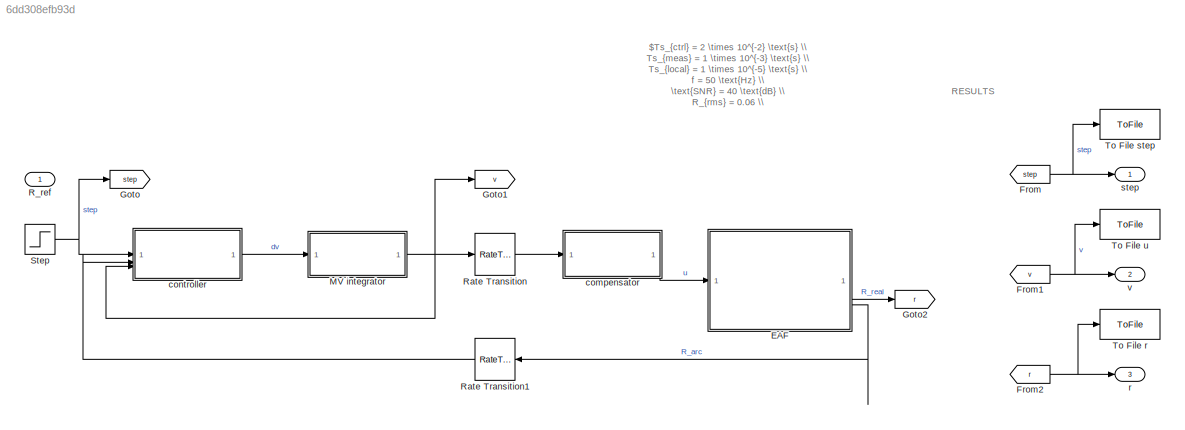
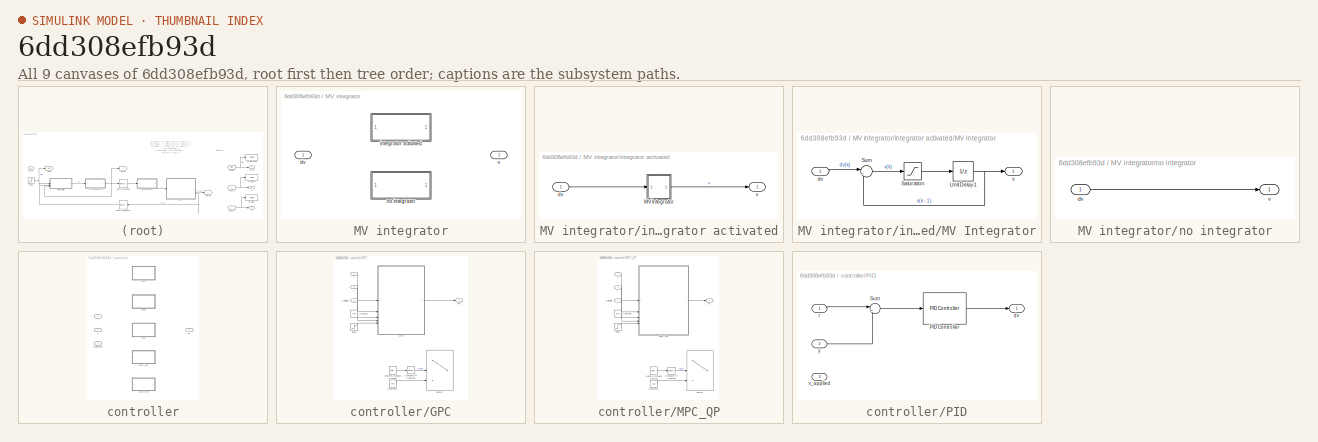
[diagram: thumbnail index - all 9 canvases of the model, root first then tree order]
MODEL slx_6dd308efb93d
KIND model
CONFIG AbsTol = auto
CONFIG EnableMultiTasking = off
CONFIG FixedStep = Ts_local
CONFIG MaxStep = auto
CONFIG MinStep = auto
CONFIG RelTol = 1e-4
CONFIG SampleTimeConstraint = Unconstrained
CONFIG SolverName = ode14x
CONFIG StartTime = 0.0
CONFIG StopTime = 40
WORKSPACE source: mxarray member
WORKSPACE CtrlChoice: string (value not decoded)
WORKSPACE Kd = [0.01225 0.02 0.01225]
WORKSPACE Ki = 20
WORKSPACE Kp = 20
BLOCK [ModelReference] EAF
  ModelNameDialog = EAF.slx
  ModelReferenceVersion = 1.100
  PortSchema = {"entries":[{"content":{"sides":[{"content":{"connectorIds":["In1","In2"]},"type":"ConnectorPlacement.EquallySpacedRectSide","uuid":"d86d1ee9-bc46-42a8-9524-fd49ad5347e3"},{"content":{"connectorIds":["Out1","Out3","Out2","Out4","Out5"],"side":"RIGHT"},"type":"ConnectorPlacement.EquallySpacedRectSide","uuid":"5e39bbbf-7cf1-43cf-875a-d495ff7677ac"},{"content":{"side":"TOP"},"type":"ConnectorPlacemen...<+256ch>
BLOCK [From] From
  GotoTag = step
BLOCK [From] From1
  GotoTag = v
BLOCK [From] From2
  GotoTag = r
BLOCK [Goto] Goto
  GotoTag = step
BLOCK [Goto] Goto1
  GotoTag = v
BLOCK [Goto] Goto2
  GotoTag = r
BLOCK [SubSystem] MV integrator
  Variant = on
BLOCK [Inport] MV integrator/dv
BLOCK [SubSystem] MV integrator/integrator activated
  VariantControl = (default)
BLOCK [SubSystem] MV integrator/integrator activated/MV Integrator
BLOCK [Saturate] MV integrator/integrator activated/MV Integrator/Saturation
  LowerLimit = v_lb
  UpperLimit = v_ub
BLOCK [Sum] MV integrator/integrator activated/MV Integrator/Sum
  Inputs = |++
BLOCK [UnitDelay] MV integrator/integrator activated/MV Integrator/Unit Delay1
  HasFrameUpgradeWarning = on
  SampleTime = -1
BLOCK [Inport] MV integrator/integrator activated/MV Integrator/dv
BLOCK [Outport] MV integrator/integrator activated/MV Integrator/v
BLOCK [Inport] MV integrator/integrator activated/dv
BLOCK [Outport] MV integrator/integrator activated/v
BLOCK [SubSystem] MV integrator/no integrator
  VariantControl = CtrlChoice == "PID"
BLOCK [Inport] MV integrator/no integrator/dv
BLOCK [Outport] MV integrator/no integrator/v
BLOCK [Outport] MV integrator/v
BLOCK [Inport] R_ref
  PortDimensions = 3
BLOCK [RateTransition] Rate Transition
  OutPortSampleTime = Ts_local
BLOCK [RateTransition] Rate Transition1
  NameLocation = top
  OutPortSampleTime = Ts_ctrl
BLOCK [Step] Step
  After = [0.045 0.065 0.045]
  Before = [0.055 0.055 0.055]
  SampleTime = Ts_ctrl
  Time = [20 10 30]
BLOCK [ToFile] To File r
  Commented = on
  Filename = r.mat
  MatrixName = r
  SaveFormat = Timeseries
BLOCK [ToFile] To File step
  Commented = on
  Filename = step.mat
  MatrixName = step
  SaveFormat = Timeseries
BLOCK [ToFile] To File u
  Commented = on
  Filename = u.mat
  MatrixName = u
  SaveFormat = Timeseries
BLOCK [ModelReference] compensator
  ModelNameDialog = compensator.slx
  ModelReferenceVersion = 1.24
BLOCK [SubSystem] controller
  Variant = on
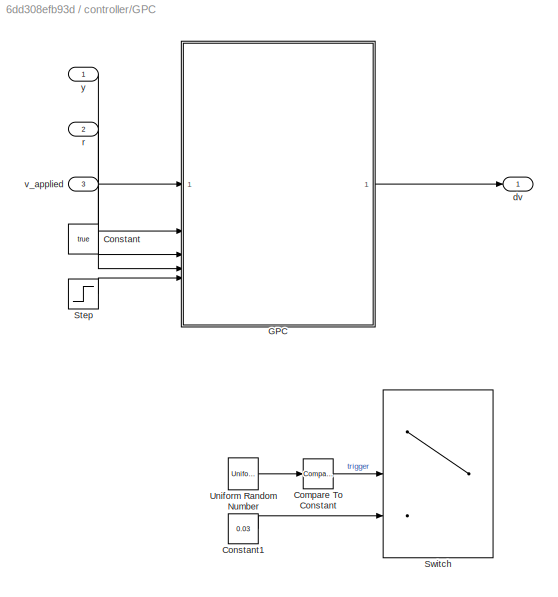
BLOCK [SubSystem] controller/GPC
  VariantControl = CtrlChoice == "GPC"
BLOCK [Reference] controller/GPC/Compare To Constant  REF=simulink/Logic and Bit
Operations/Compare
To Constant
  Commented = on
  SourceBlock = simulink/Logic and Bit\nOperations/Compare\nTo Constant
  SourceType = Compare To Constant
BLOCK [Constant] controller/GPC/Constant
  Value = true
BLOCK [Constant] controller/GPC/Constant1
  Commented = on
  SampleTime = Ts_ctrl
  Value = 0.03
BLOCK [ModelReference] controller/GPC/GPC
  ModelNameDialog = GPC.slx
  ModelReferenceVersion = 1.264
BLOCK [Step] controller/GPC/Step
  After = 0
  Before = 1
  SampleTime = Ts_ctrl
  Time = 0.1
BLOCK [Switch] controller/GPC/Switch
  Commented = on
  Criteria = u2 > Threshold
  InputSameDT = off
  SaturateOnIntegerOverflow = off
  Threshold = 0.5
BLOCK [UniformRandomNumber] controller/GPC/Uniform Random Number
  Commented = on
  Maximum = 100
  Minimum = 0
  SampleTime = Ts_ctrl * 5
BLOCK [Outport] controller/GPC/dv
BLOCK [Inport] controller/GPC/r
  NameLocation = left
  Port = 2
BLOCK [Inport] controller/GPC/v_applied
  NameLocation = left
  Port = 3
BLOCK [Inport] controller/GPC/y
  NameLocation = left
BLOCK [ModelReference] controller/MPC
  ModelNameDialog = MPC.slx
  ModelReferenceVersion = 1.9
  VariantControl = CtrlChoice == "MPC"
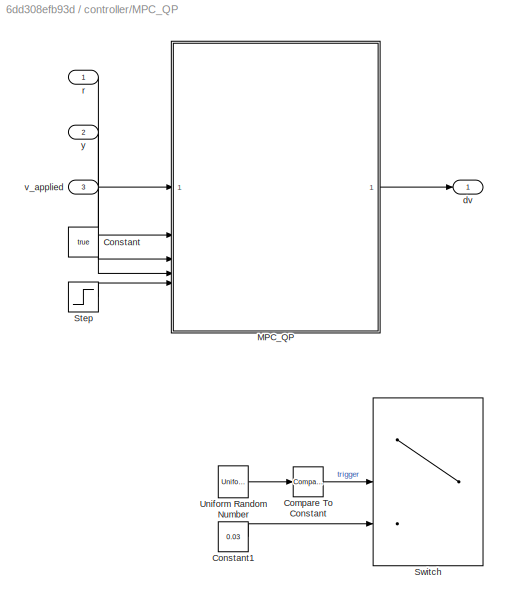
BLOCK [SubSystem] controller/MPC_QP
  VariantControl = CtrlChoice == "MPC_QP"
BLOCK [Reference] controller/MPC_QP/Compare To Constant  REF=simulink/Logic and Bit
Operations/Compare
To Constant
  Commented = on
  SourceBlock = simulink/Logic and Bit\nOperations/Compare\nTo Constant
  SourceType = Compare To Constant
BLOCK [Constant] controller/MPC_QP/Constant
  Value = true
BLOCK [Constant] controller/MPC_QP/Constant1
  Commented = on
  SampleTime = Ts_ctrl
  Value = 0.03
BLOCK [ModelReference] controller/MPC_QP/MPC_QP
  ModelNameDialog = MPCQP.slx
  ModelReferenceVersion = 1.60
BLOCK [Step] controller/MPC_QP/Step
  After = 0
  Before = 1
  SampleTime = Ts_ctrl
  Time = 0.1
BLOCK [Switch] controller/MPC_QP/Switch
  Commented = on
  Criteria = u2 > Threshold
  InputSameDT = off
  SaturateOnIntegerOverflow = off
  Threshold = 0.5
BLOCK [UniformRandomNumber] controller/MPC_QP/Uniform Random Number
  Commented = on
  Maximum = 100
  Minimum = 0
  SampleTime = Ts_ctrl * 5
BLOCK [Outport] controller/MPC_QP/dv
BLOCK [Inport] controller/MPC_QP/r
  NameLocation = left
BLOCK [Inport] controller/MPC_QP/v_applied
  NameLocation = left
  Port = 3
BLOCK [Inport] controller/MPC_QP/y
  NameLocation = left
  Port = 2
BLOCK [ModelReference] controller/MyCtrler
  ModelNameDialog = MyCtrler.slx
  ModelReferenceVersion = 1.44
  VariantControl = CtrlChoice == "MyCtrler"
BLOCK [SubSystem] controller/PID
  VariantControl = CtrlChoice == "PID"
BLOCK [Reference] controller/PID/PID Controller  REF=slpidlib/PID Controller
  LibrarySourceBlock = simulink/Continuous/PID Controller
  SourceBlock = slpidlib/PID Controller
  SourceType = PID 1dof
BLOCK [Sum] controller/PID/Sum
  Inputs = |+-
BLOCK [Outport] controller/PID/dv
BLOCK [Inport] controller/PID/r
BLOCK [Inport] controller/PID/v_applied
  Port = 3
BLOCK [Inport] controller/PID/y
  Port = 2
BLOCK [Outport] controller/dv
BLOCK [Inport] controller/r
BLOCK [Inport] controller/v_applied
  Port = 3
BLOCK [Inport] controller/y
  Port = 2
BLOCK [Outport] r
  Port = 3
BLOCK [Outport] step
BLOCK [Outport] v
  Port = 2
ANNOTATION (root): $Ts_{ctrl} = 2 \times 10^{-2} \text{s} \\ Ts_{meas} = 1 \times 10^{-3} \text{s} \\ Ts_{local} = 1 \times 10^{-5} \text{s} \\ f = 50 \text{Hz} \\ \text{SNR} = 40 \text{dB} \\ R_{rms} = 0.06 \\ P_{dist} = 2 \times 10^{-7}$
ANNOTATION (root): RESULTS
LINE EAF:3 -> Rate Transition1:1
LINE EAF:4 -> Goto2:1
NET From1:1 -> To File u:1, v:1
NET From2:1 -> To File r:1, r:1
NET From:1 -> To File step:1, step:1
LINE MV integrator/integrator activated/MV Integrator/Saturation:1 -> MV integrator/integrator activated/MV Integrator/Unit Delay1:1
LINE MV integrator/integrator activated/MV Integrator/Sum:1 -> MV integrator/integrator activated/MV Integrator/Saturation:1
NET MV integrator/integrator activated/MV Integrator/Unit Delay1:1 -> MV integrator/integrator activated/MV Integrator/Sum:2, MV integrator/integrator activated/MV Integrator/v:1
LINE MV integrator/integrator activated/MV Integrator/dv:1 -> MV integrator/integrator activated/MV Integrator/Sum:1
LINE MV integrator/integrator activated/MV Integrator:1 -> MV integrator/integrator activated/v:1
LINE MV integrator/integrator activated/dv:1 -> MV integrator/integrator activated/MV Integrator:1
LINE MV integrator/no integrator/dv:1 -> MV integrator/no integrator/v:1
NET MV integrator:1 -> Goto1:1, Rate Transition:1, controller:3
LINE Rate Transition1:1 -> controller:2
LINE Rate Transition:1 -> compensator:1
NET Step:1 -> Goto:1, controller:1
LINE compensator:1 -> EAF:1
LINE controller/GPC/Compare To Constant:1 -> controller/GPC/Switch:2
LINE controller/GPC/Constant1:1 -> controller/GPC/Switch:3
LINE controller/GPC/Constant:1 -> controller/GPC/GPC:4
LINE controller/GPC/GPC:1 -> controller/GPC/dv:1
LINE controller/GPC/Step:1 -> controller/GPC/GPC:5
LINE controller/GPC/Uniform Random Number:1 -> controller/GPC/Compare To Constant:1
LINE controller/GPC/r:1 -> controller/GPC/GPC:2
LINE controller/GPC/v_applied:1 -> controller/GPC/GPC:3
LINE controller/GPC/y:1 -> controller/GPC/GPC:1
LINE controller/MPC_QP/Compare To Constant:1 -> controller/MPC_QP/Switch:2
LINE controller/MPC_QP/Constant1:1 -> controller/MPC_QP/Switch:3
LINE controller/MPC_QP/Constant:1 -> controller/MPC_QP/MPC_QP:4
LINE controller/MPC_QP/MPC_QP:1 -> controller/MPC_QP/dv:1
LINE controller/MPC_QP/Step:1 -> controller/MPC_QP/MPC_QP:5
LINE controller/MPC_QP/Uniform Random Number:1 -> controller/MPC_QP/Compare To Constant:1
LINE controller/MPC_QP/r:1 -> controller/MPC_QP/MPC_QP:1
LINE controller/MPC_QP/v_applied:1 -> controller/MPC_QP/MPC_QP:3
LINE controller/MPC_QP/y:1 -> controller/MPC_QP/MPC_QP:2
LINE controller/PID/PID Controller:1 -> controller/PID/dv:1
LINE controller/PID/Sum:1 -> controller/PID/PID Controller:1
LINE controller/PID/r:1 -> controller/PID/Sum:1
LINE controller/PID/y:1 -> controller/PID/Sum:2
LINE controller:1 -> MV integrator:1
note: NET lines group one-source signal fan-out (src -> all destinations, sorted); 1:1 wires keep LINE
